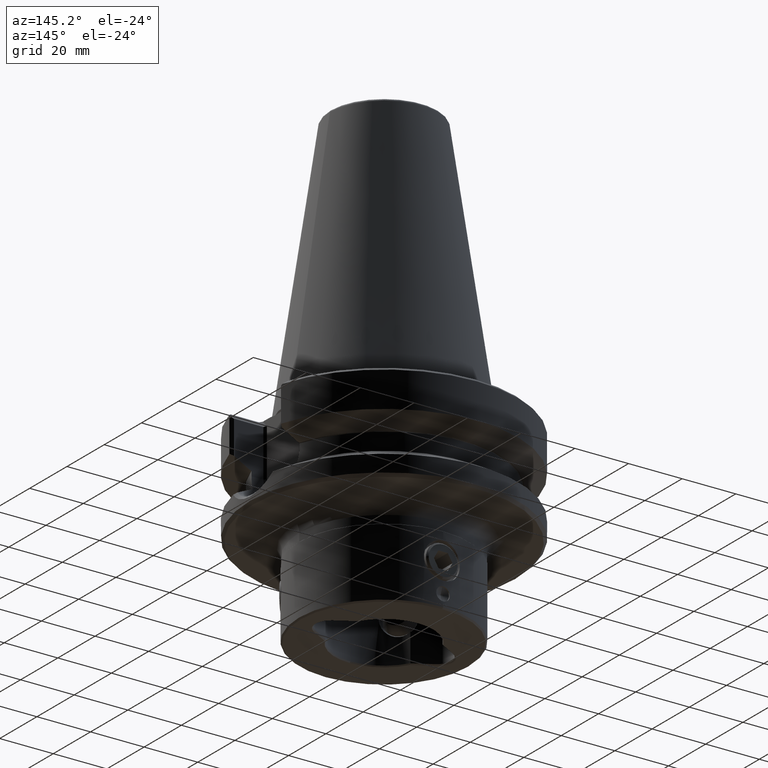
[diagram: clean part render]
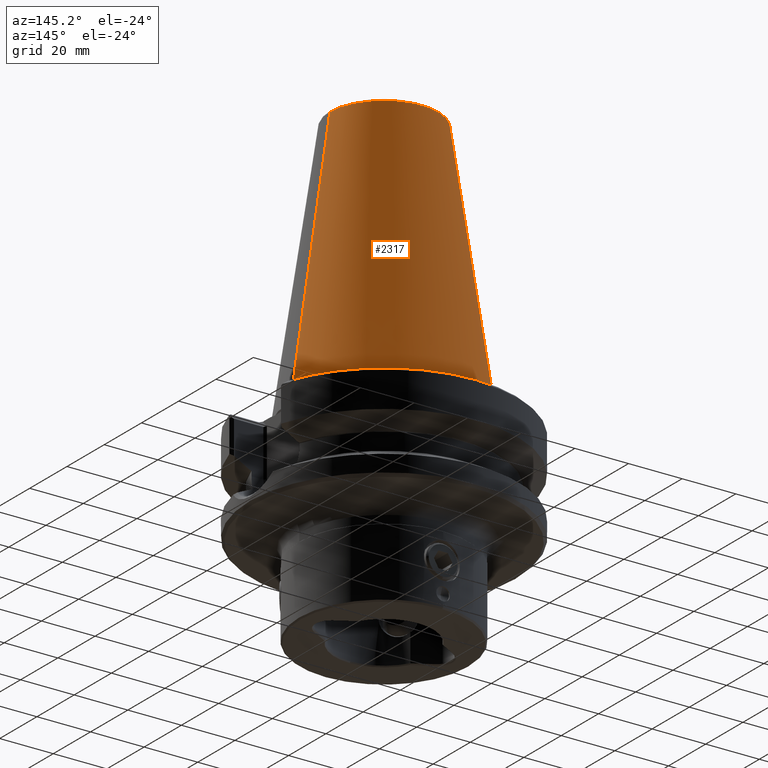
[diagram: same view with one face highlighted and labeled with its STEP entity id]
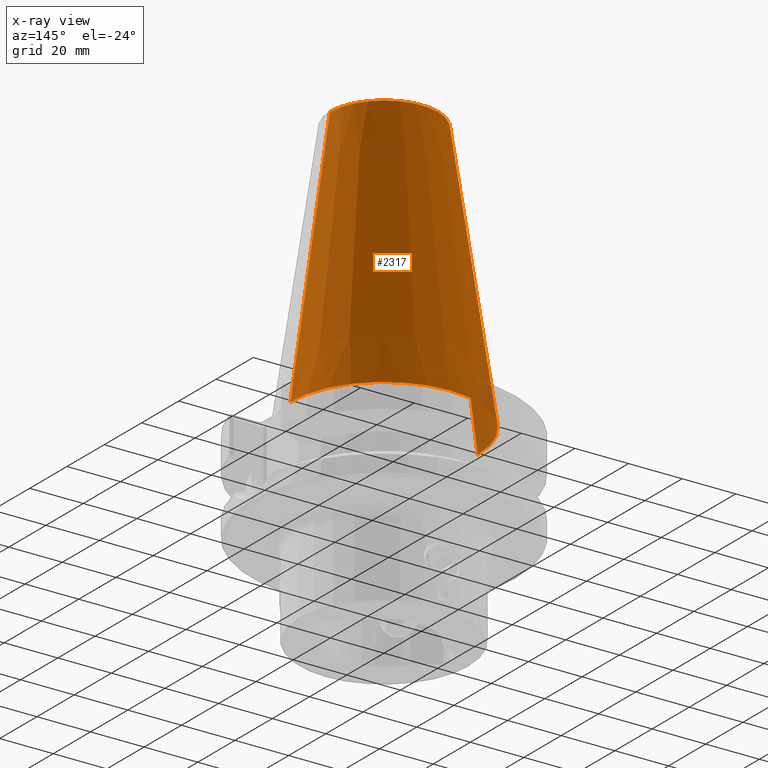
[diagram: x-ray of the same camera — body ghosted, the highlighted face saturated]
A machine part, auxiliary view. The second image highlights one B-rep face of the part: STEP entity #2317.
The next image is the same camera in x-ray: the body ghosted, the highlighted face saturated — about 3% of this face is hidden behind the body in this view.
In plain terms, the highlighted conical surface has half-angle 8.297 deg.
Its self-contained STEP definition (entity closure, byte-faithful):
#1555=EDGE_CURVE('NONE',#2123,#3399,#4043,.T.);
#1641=EDGE_CURVE('NONE',#3275,#3399,#4135,.T.);
#1783=VERTEX_POINT('NONE',#4301);
#2123=VERTEX_POINT('NONE',#4676);
#2317=ADVANCED_FACE('NONE',(#4887),#4888,.T.);
#2771=EDGE_CURVE('NONE',#1783,#3275,#5400,.T.);
#3185=EDGE_CURVE('NONE',#2123,#1783,#5866,.F.);
#3275=VERTEX_POINT('NONE',#5961);
#3399=VERTEX_POINT('NONE',#6098);
#4043=LINE('',#6973,#6974);
#4135=CIRCLE('',#7120,34.925);
#4301=CARTESIAN_POINT('',(20.198847610122,1.26122084298849E-014,100.978377218042));
#4676=CARTESIAN_POINT('',(-20.198847610122,1.01385630226648E-014,100.978377218042));
#4887=FACE_OUTER_BOUND('',#8568,.T.);
#4888=CONICAL_SURFACE('',#8569,19.1019339306011,0.144813846547412);
#5400=LINE('',#9561,#9562);
#5866=CIRCLE('',#10358,20.198847610122);
#5961=CARTESIAN_POINT('',(34.925,5.38104826461794E-031,4.84681739187922E-016));
#6098=CARTESIAN_POINT('',(-34.925,-4.27707894602213E-015,-4.84681739187922E-016));
#6973=CARTESIAN_POINT('',(-19.1019339306011,1.12123475697673E-014,108.5));
#6974=VECTOR('',#11817,1000.0);
#7120=AXIS2_PLACEMENT_3D('',#11908,#11909,#11910);
#8568=EDGE_LOOP('',(#12830,#12831,#12832,#12833));
#8569=AXIS2_PLACEMENT_3D('',#12834,#12835,#12836);
#9561=CARTESIAN_POINT('',(19.1019339306011,1.35516597943308E-014,108.5));
#9562=VECTOR('',#13489,1000.0);
#10358=AXIS2_PLACEMENT_3D('',#14072,#14073,#14074);
#11817=DIRECTION('',(-0.1443082272673,-1.41265395219677E-016,-0.989532786492176));
#11908=CARTESIAN_POINT('',(0.0,0.0,0.0));
#11909=DIRECTION('',(-1.38777878078145E-017,1.2490009027033E-016,1.0));
#11910=DIRECTION('',(1.0,1.54074395550979E-032,1.38777878078145E-017));
#12830=ORIENTED_EDGE('',*,*,#1555,.F.);
#12831=ORIENTED_EDGE('',*,*,#3185,.T.);
#12832=ORIENTED_EDGE('',*,*,#2771,.T.);
#12833=ORIENTED_EDGE('',*,*,#1641,.T.);
#12834=CARTESIAN_POINT('',(-1.50573997714787E-015,1.35516597943308E-014,108.5));
#12835=DIRECTION('',(1.38777878078145E-017,-1.2490009027033E-016,-1.0));
#12836=DIRECTION('',(1.0,1.54074395550979E-032,1.38777878078145E-017));
#13489=DIRECTION('',(0.1443082272673,-1.23592734358324E-016,-0.989532786492176));
#14072=CARTESIAN_POINT('',(-1.40135649220943E-015,1.26122084298849E-014,100.978377218042));
#14073=DIRECTION('',(-1.38777878078145E-017,1.2490009027033E-016,1.0));
#14074=DIRECTION('',(1.0,1.54074395550979E-032,1.38777878078145E-017));